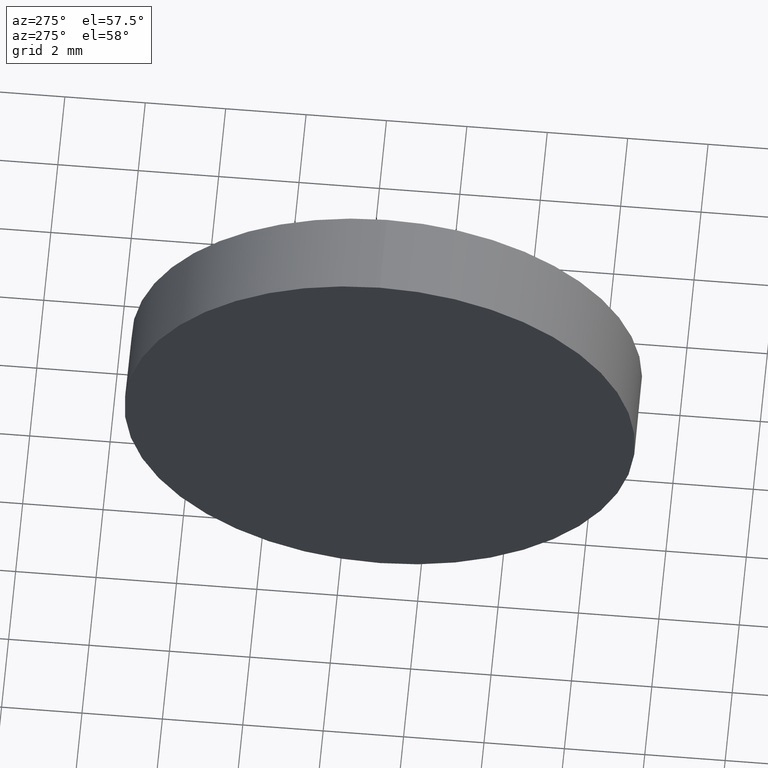
[diagram: clean part render]
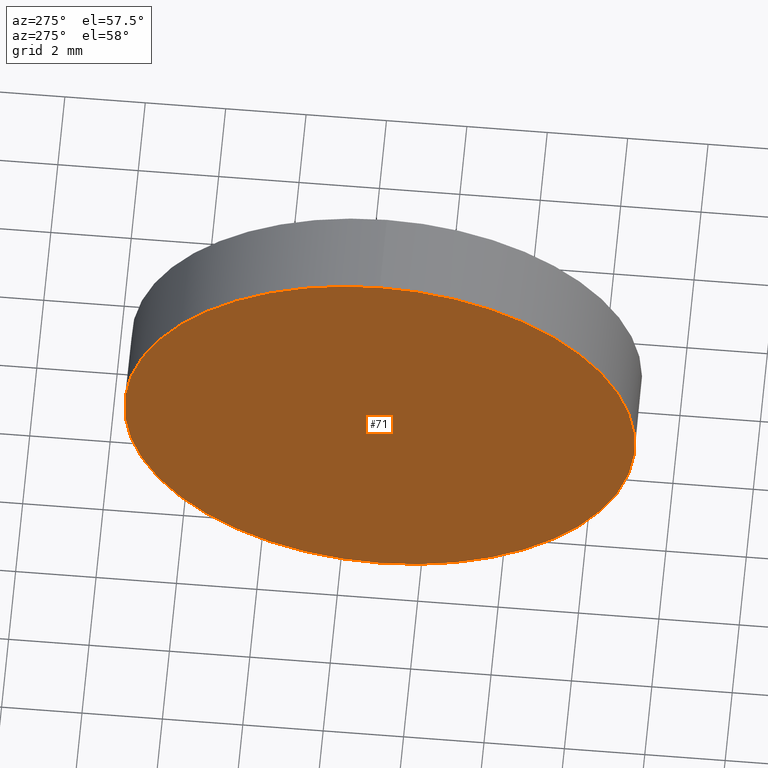
[diagram: same view with one face highlighted and labeled with its STEP entity id]
A machine part, auxiliary view. The second image highlights one B-rep face of the part: STEP entity #71.
In plain terms, the highlighted planar face has unit normal (1, 0, 0).
Its self-contained STEP definition (entity closure, byte-faithful):
#3 = DIRECTION ( 'NONE',  ( -1.000000000000000000, -0.0000000000000000000, -0.0000000000000000000 ) ) ;
#10 = AXIS2_PLACEMENT_3D ( 'NONE', #126, #164, #22 ) ;
#14 = CARTESIAN_POINT ( 'NONE',  ( 502.8615574523524900, 27.01923278468612500, 0.0000000000000000000 ) ) ;
#22 = DIRECTION ( 'NONE',  ( 0.0000000000000000000, 0.0000000000000000000, 1.000000000000000000 ) ) ;
#31 = DIRECTION ( 'NONE',  ( 1.000000000000000000, 0.0000000000000000000, 0.0000000000000000000 ) ) ;
#40 = CIRCLE ( 'NONE', #108, 6.349999999999994300 ) ;
#46 = PLANE ( 'NONE',  #68 ) ;
#51 = VERTEX_POINT ( 'NONE', #112 ) ;
#54 = FACE_OUTER_BOUND ( 'NONE', #75, .T. ) ;
#55 = ORIENTED_EDGE ( 'NONE', *, *, #86, .T. ) ;
#68 = AXIS2_PLACEMENT_3D ( 'NONE', #14, #31, #109 ) ;
#71 = ADVANCED_FACE ( 'NONE', ( #54 ), #46, .F. ) ;
#75 = EDGE_LOOP ( 'NONE', ( #55, #170 ) ) ;
#79 = CARTESIAN_POINT ( 'NONE',  ( 502.8615574523524900, 27.01923278468612500, -6.349999999999994300 ) ) ;
#86 = EDGE_CURVE ( 'NONE', #51, #101, #40, .T. ) ;
#92 = CIRCLE ( 'NONE', #10, 6.349999999999994300 ) ;
#101 = VERTEX_POINT ( 'NONE', #79 ) ;
#108 = AXIS2_PLACEMENT_3D ( 'NONE', #151, #3, #114 ) ;
#109 = DIRECTION ( 'NONE',  ( 0.0000000000000000000, 0.0000000000000000000, -1.000000000000000000 ) ) ;
#112 = CARTESIAN_POINT ( 'NONE',  ( 502.8615574523524900, 27.01923278468612500, 6.349999999999994300 ) ) ;
#114 = DIRECTION ( 'NONE',  ( 0.0000000000000000000, 0.0000000000000000000, 1.000000000000000000 ) ) ;
#126 = CARTESIAN_POINT ( 'NONE',  ( 502.8615574523524900, 27.01923278468612500, 0.0000000000000000000 ) ) ;
#133 = EDGE_CURVE ( 'NONE', #101, #51, #92, .T. ) ;
#151 = CARTESIAN_POINT ( 'NONE',  ( 502.8615574523524900, 27.01923278468612500, 0.0000000000000000000 ) ) ;
#164 = DIRECTION ( 'NONE',  ( -1.000000000000000000, -0.0000000000000000000, -0.0000000000000000000 ) ) ;
#170 = ORIENTED_EDGE ( 'NONE', *, *, #133, .T. ) ;